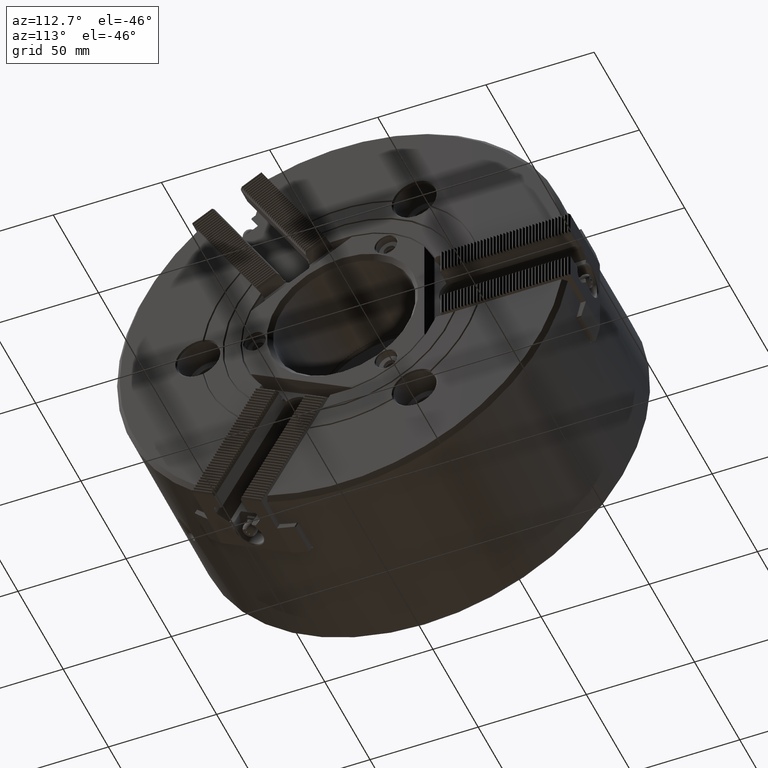
[diagram: clean part render]
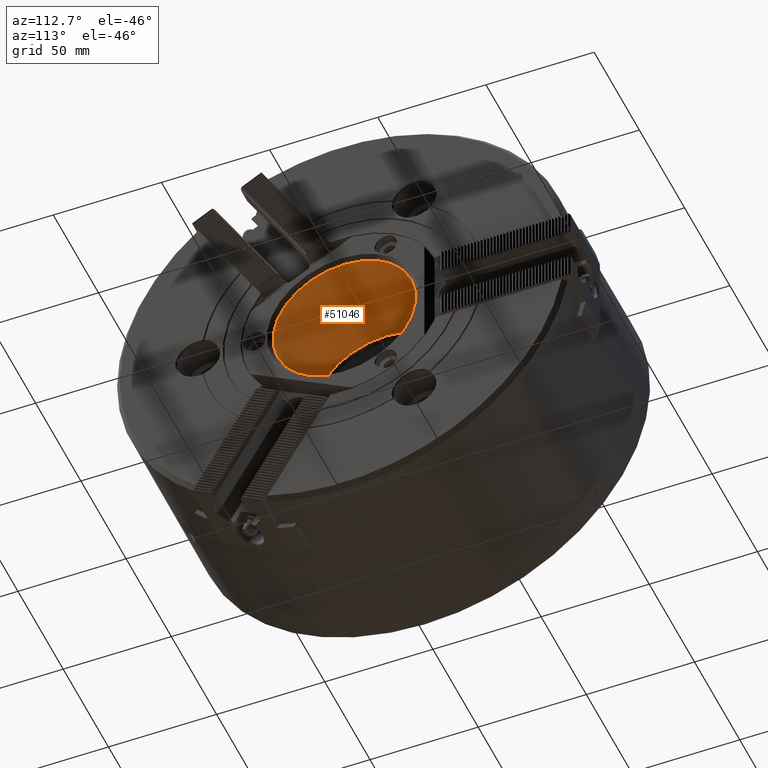
[diagram: same view with one face highlighted and labeled with its STEP entity id]
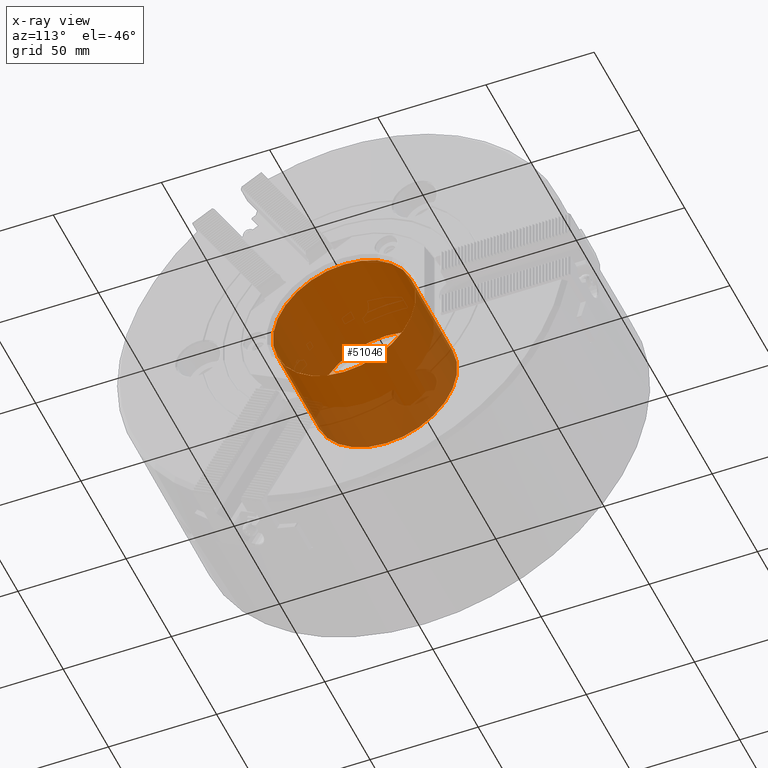
[diagram: x-ray of the same camera — body ghosted, the highlighted face saturated]
A machine part, auxiliary view. The second image highlights one B-rep face of the part: STEP entity #51046.
The next image is the same camera in x-ray: the body ghosted, the highlighted face saturated — about 27% of this face is hidden behind the body in this view.
In plain terms, the highlighted cylindrical surface (bore or boss wall) has radius 33 mm, axis along (-1, 0, 0).
Its self-contained STEP definition (entity closure, byte-faithful):
#2679=CIRCLE('',#53546,33.);
#2680=CIRCLE('',#53547,33.);
#12963=ORIENTED_EDGE('',*,*,#23625,.F.);
#12964=ORIENTED_EDGE('',*,*,#23626,.T.);
#23625=EDGE_CURVE('',#28976,#28976,#2679,.T.);
#23626=EDGE_CURVE('',#28977,#28977,#2680,.T.);
#28976=VERTEX_POINT('',#68759);
#28977=VERTEX_POINT('',#68761);
#32339=EDGE_LOOP('',(#12963));
#32340=EDGE_LOOP('',(#12964));
#34623=FACE_BOUND('',#32339,.T.);
#34624=FACE_BOUND('',#32340,.T.);
#36683=CYLINDRICAL_SURFACE('',#53545,33.);
#51046=ADVANCED_FACE('',(#34623,#34624),#36683,.F.);
#53545=AXIS2_PLACEMENT_3D('',#68757,#57952,#57953);
#53546=AXIS2_PLACEMENT_3D('',#68758,#57954,#57955);
#53547=AXIS2_PLACEMENT_3D('',#68760,#57956,#57957);
#57952=DIRECTION('',(-1.,0.,0.));
#57953=DIRECTION('',(0.,0.,-1.));
#57954=DIRECTION('',(1.,0.,0.));
#57955=DIRECTION('',(0.,0.,-1.));
#57956=DIRECTION('',(1.,0.,0.));
#57957=DIRECTION('',(0.,0.,-1.));
#68757=CARTESIAN_POINT('',(2.35,0.,0.));
#68758=CARTESIAN_POINT('',(-48.,0.,0.));
#68759=CARTESIAN_POINT('',(-48.,0.,-33.));
#68760=CARTESIAN_POINT('',(-2.00000000000007,0.,0.));
#68761=CARTESIAN_POINT('',(-2.00000000000007,0.,-33.));